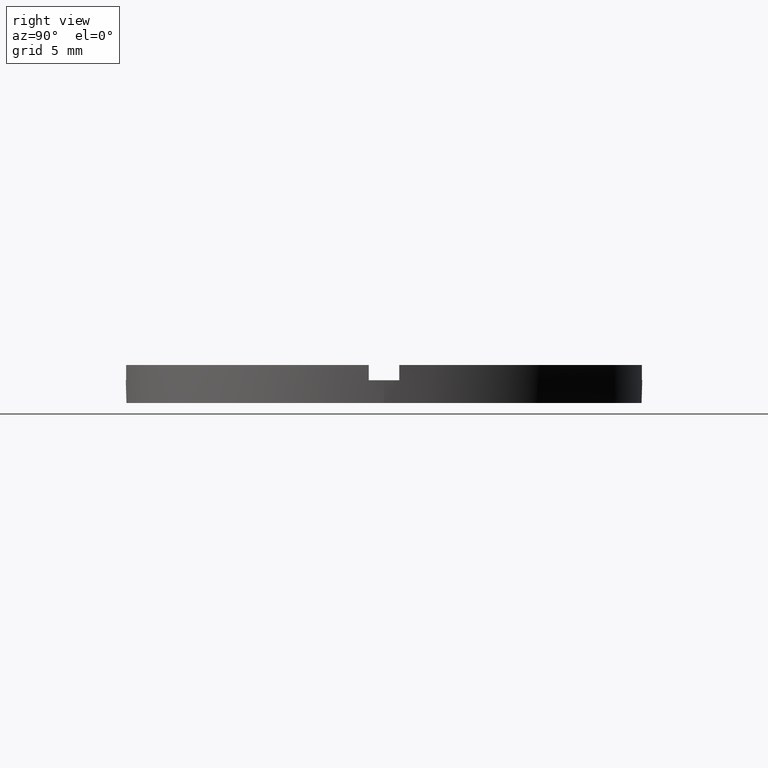
[diagram: clean part render]
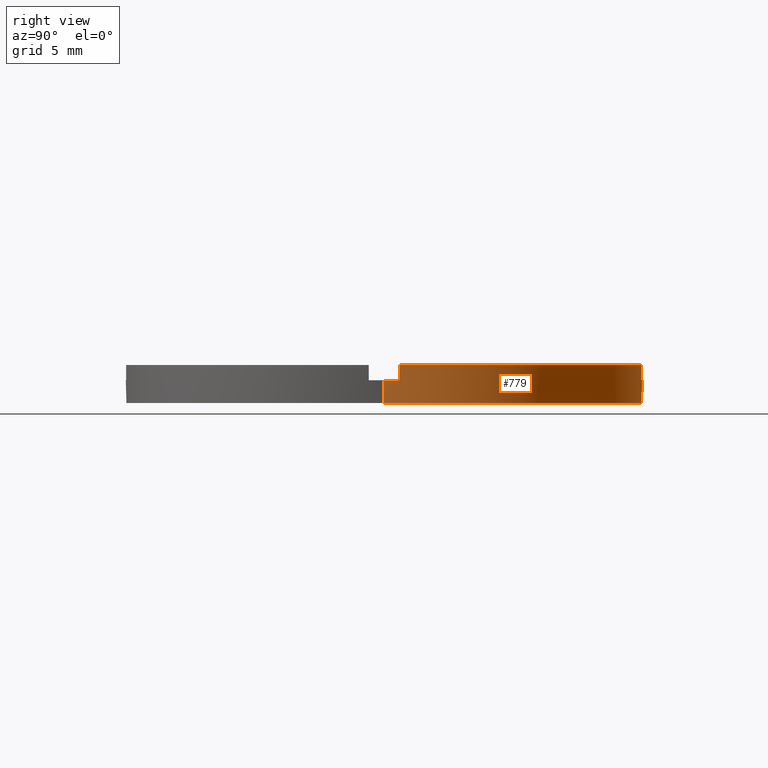
[diagram: same view with one face highlighted and labeled with its STEP entity id]
A machine part, right view. The second image highlights one B-rep face of the part: STEP entity #779.
In plain terms, the highlighted cylindrical surface (partial cylindrical patch) has radius 17 mm, axis along (-0, -0, -1).
Its self-contained STEP definition (entity closure, byte-faithful):
#8 = DIRECTION ( 'NONE',  ( 0.000000000000000000, 0.000000000000000000, 1.000000000000000000 ) ) ;
#14 = DIRECTION ( 'NONE',  ( 0.000000000000000000, 0.000000000000000000, 1.000000000000000000 ) ) ;
#22 = CARTESIAN_POINT ( 'NONE',  ( -16.97056274847714263, 0.9999999999999763522, 2.500000000000000000 ) ) ;
#25 = DIRECTION ( 'NONE',  ( 0.000000000000000000, 0.000000000000000000, 1.000000000000000000 ) ) ;
#29 = CARTESIAN_POINT ( 'NONE',  ( -1.000000000000025091, 16.97056274847713908, 2.500000000000000000 ) ) ;
#38 = CIRCLE ( 'NONE', #264, 17.00000000000000000 ) ;
#39 = LINE ( 'NONE', #708, #556 ) ;
#51 = CIRCLE ( 'NONE', #279, 17.00000000000000000 ) ;
#54 = DIRECTION ( 'NONE',  ( 0.000000000000000000, -0.000000000000000000, 1.000000000000000000 ) ) ;
#56 = ORIENTED_EDGE ( 'NONE', *, *, #326, .T. ) ;
#69 = DIRECTION ( 'NONE',  ( 0.000000000000000000, 0.000000000000000000, 1.000000000000000000 ) ) ;
#71 = CARTESIAN_POINT ( 'NONE',  ( -1.000000000000025091, 16.97056274847713908, 2.500000000000000000 ) ) ;
#74 = DIRECTION ( 'NONE',  ( -0.000000000000000000, -0.000000000000000000, -1.000000000000000000 ) ) ;
#77 = DIRECTION ( 'NONE',  ( 1.000000000000000000, 0.000000000000000000, 0.000000000000000000 ) ) ;
#81 = EDGE_CURVE ( 'NONE', #450, #469, #269, .T. ) ;
#85 = CARTESIAN_POINT ( 'NONE',  ( 17.00000000000000000, 2.081899558550500280E-15, 1.500000000000000000 ) ) ;
#101 = ORIENTED_EDGE ( 'NONE', *, *, #683, .T. ) ;
#103 = ORIENTED_EDGE ( 'NONE', *, *, #427, .F. ) ;
#104 = EDGE_CURVE ( 'NONE', #706, #215, #290, .T. ) ;
#109 = EDGE_CURVE ( 'NONE', #450, #365, #38, .T. ) ;
#116 = VERTEX_POINT ( 'NONE', #755 ) ;
#122 = ORIENTED_EDGE ( 'NONE', *, *, #104, .T. ) ;
#123 = VERTEX_POINT ( 'NONE', #310 ) ;
#127 = ORIENTED_EDGE ( 'NONE', *, *, #721, .F. ) ;
#136 = CARTESIAN_POINT ( 'NONE',  ( 0.000000000000000000, 0.000000000000000000, 2.500000000000000000 ) ) ;
#139 = VECTOR ( 'NONE', #581, 1000.000000000000000 ) ;
#149 = VECTOR ( 'NONE', #595, 1000.000000000000000 ) ;
#157 = VERTEX_POINT ( 'NONE', #29 ) ;
#163 = LINE ( 'NONE', #735, #655 ) ;
#186 = CARTESIAN_POINT ( 'NONE',  ( -17.00000000000000000, 0.000000000000000000, 1.500000000000000000 ) ) ;
#202 = VERTEX_POINT ( 'NONE', #332 ) ;
#203 = DIRECTION ( 'NONE',  ( 1.000000000000000000, 0.000000000000000000, 0.000000000000000000 ) ) ;
#215 = VERTEX_POINT ( 'NONE', #718 ) ;
#252 = DIRECTION ( 'NONE',  ( -0.000000000000000000, -0.000000000000000000, -1.000000000000000000 ) ) ;
#257 = CARTESIAN_POINT ( 'NONE',  ( 16.97056274847714974, 0.9999999999998411271, 1.500000000000000000 ) ) ;
#264 = AXIS2_PLACEMENT_3D ( 'NONE', #318, #69, #430 ) ;
#265 = DIRECTION ( 'NONE',  ( 1.000000000000000000, 0.000000000000000000, 0.000000000000000000 ) ) ;
#269 = LINE ( 'NONE', #22, #536 ) ;
#279 = AXIS2_PLACEMENT_3D ( 'NONE', #618, #14, #203 ) ;
#282 = VECTOR ( 'NONE', #8, 1000.000000000000000 ) ;
#290 = LINE ( 'NONE', #516, #282 ) ;
#297 = CIRCLE ( 'NONE', #700, 17.00000000000000000 ) ;
#310 = CARTESIAN_POINT ( 'NONE',  ( 16.97056274847714974, 0.9999999999998411271, 2.500000000000000000 ) ) ;
#311 = CARTESIAN_POINT ( 'NONE',  ( 0.9999999999999749090, 16.97056274847714263, 1.500000000000000000 ) ) ;
#318 = CARTESIAN_POINT ( 'NONE',  ( 0.000000000000000000, 0.000000000000000000, 1.500000000000000000 ) ) ;
#320 = EDGE_CURVE ( 'NONE', #706, #202, #297, .T. ) ;
#326 = EDGE_CURVE ( 'NONE', #123, #447, #39, .T. ) ;
#332 = CARTESIAN_POINT ( 'NONE',  ( -1.000000000000025091, 16.97056274847713908, 1.500000000000000000 ) ) ;
#339 = VERTEX_POINT ( 'NONE', #85 ) ;
#341 = ORIENTED_EDGE ( 'NONE', *, *, #81, .T. ) ;
#354 = VERTEX_POINT ( 'NONE', #408 ) ;
#357 = ORIENTED_EDGE ( 'NONE', *, *, #600, .T. ) ;
#363 = CARTESIAN_POINT ( 'NONE',  ( -16.97056274847714263, 0.9999999999999763522, 1.500000000000000000 ) ) ;
#365 = VERTEX_POINT ( 'NONE', #186 ) ;
#380 = ORIENTED_EDGE ( 'NONE', *, *, #109, .F. ) ;
#381 = CARTESIAN_POINT ( 'NONE',  ( -16.97056274847714263, 0.9999999999999763522, 2.500000000000000000 ) ) ;
#389 = CIRCLE ( 'NONE', #465, 17.00000000000000000 ) ;
#393 = EDGE_CURVE ( 'NONE', #123, #215, #541, .T. ) ;
#394 = CIRCLE ( 'NONE', #400, 17.00000000000000000 ) ;
#400 = AXIS2_PLACEMENT_3D ( 'NONE', #539, #405, #674 ) ;
#403 = LINE ( 'NONE', #71, #149 ) ;
#405 = DIRECTION ( 'NONE',  ( 0.000000000000000000, 0.000000000000000000, 1.000000000000000000 ) ) ;
#407 = CYLINDRICAL_SURFACE ( 'NONE', #567, 17.00000000000000000 ) ;
#408 = CARTESIAN_POINT ( 'NONE',  ( -17.00000000000000000, 0.000000000000000000, 0.000000000000000000 ) ) ;
#415 = EDGE_LOOP ( 'NONE', ( #127, #640, #101, #471, #380, #341, #103, #357, #638, #122, #573, #56 ) ) ;
#427 = EDGE_CURVE ( 'NONE', #157, #469, #51, .T. ) ;
#430 = DIRECTION ( 'NONE',  ( 1.000000000000000000, 0.000000000000000000, 0.000000000000000000 ) ) ;
#447 = VERTEX_POINT ( 'NONE', #257 ) ;
#450 = VERTEX_POINT ( 'NONE', #363 ) ;
#465 = AXIS2_PLACEMENT_3D ( 'NONE', #509, #25, #77 ) ;
#469 = VERTEX_POINT ( 'NONE', #381 ) ;
#471 = ORIENTED_EDGE ( 'NONE', *, *, #774, .F. ) ;
#502 = AXIS2_PLACEMENT_3D ( 'NONE', #136, #551, #265 ) ;
#509 = CARTESIAN_POINT ( 'NONE',  ( 0.000000000000000000, 0.000000000000000000, 1.500000000000000000 ) ) ;
#516 = CARTESIAN_POINT ( 'NONE',  ( 0.9999999999999749090, 16.97056274847714263, 2.500000000000000000 ) ) ;
#517 = DIRECTION ( 'NONE',  ( -0.000000000000000000, -0.000000000000000000, -1.000000000000000000 ) ) ;
#521 = CARTESIAN_POINT ( 'NONE',  ( -17.00000000000000000, 0.000000000000000000, 2.500000000000000000 ) ) ;
#525 = DIRECTION ( 'NONE',  ( -1.000000000000000000, 0.000000000000000000, 0.000000000000000000 ) ) ;
#536 = VECTOR ( 'NONE', #612, 1000.000000000000000 ) ;
#539 = CARTESIAN_POINT ( 'NONE',  ( 0.000000000000000000, 0.000000000000000000, 0.000000000000000000 ) ) ;
#541 = CIRCLE ( 'NONE', #502, 17.00000000000000000 ) ;
#551 = DIRECTION ( 'NONE',  ( 0.000000000000000000, 0.000000000000000000, 1.000000000000000000 ) ) ;
#556 = VECTOR ( 'NONE', #517, 1000.000000000000000 ) ;
#567 = AXIS2_PLACEMENT_3D ( 'NONE', #724, #252, #525 ) ;
#573 = ORIENTED_EDGE ( 'NONE', *, *, #393, .F. ) ;
#577 = EDGE_CURVE ( 'NONE', #339, #116, #163, .T. ) ;
#581 = DIRECTION ( 'NONE',  ( -0.000000000000000000, -0.000000000000000000, -1.000000000000000000 ) ) ;
#595 = DIRECTION ( 'NONE',  ( -0.000000000000000000, -0.000000000000000000, -1.000000000000000000 ) ) ;
#600 = EDGE_CURVE ( 'NONE', #157, #202, #403, .T. ) ;
#612 = DIRECTION ( 'NONE',  ( 0.000000000000000000, 0.000000000000000000, 1.000000000000000000 ) ) ;
#618 = CARTESIAN_POINT ( 'NONE',  ( 0.000000000000000000, 0.000000000000000000, 2.500000000000000000 ) ) ;
#638 = ORIENTED_EDGE ( 'NONE', *, *, #320, .F. ) ;
#640 = ORIENTED_EDGE ( 'NONE', *, *, #577, .T. ) ;
#655 = VECTOR ( 'NONE', #74, 1000.000000000000000 ) ;
#658 = FACE_OUTER_BOUND ( 'NONE', #415, .T. ) ;
#664 = LINE ( 'NONE', #521, #139 ) ;
#674 = DIRECTION ( 'NONE',  ( 1.000000000000000000, 0.000000000000000000, 0.000000000000000000 ) ) ;
#683 = EDGE_CURVE ( 'NONE', #116, #354, #394, .T. ) ;
#700 = AXIS2_PLACEMENT_3D ( 'NONE', #780, #54, #772 ) ;
#706 = VERTEX_POINT ( 'NONE', #311 ) ;
#708 = CARTESIAN_POINT ( 'NONE',  ( 16.97056274847714974, 0.9999999999998411271, 2.500000000000000000 ) ) ;
#718 = CARTESIAN_POINT ( 'NONE',  ( 0.9999999999999749090, 16.97056274847714263, 2.500000000000000000 ) ) ;
#721 = EDGE_CURVE ( 'NONE', #339, #447, #389, .T. ) ;
#724 = CARTESIAN_POINT ( 'NONE',  ( 0.000000000000000000, 0.000000000000000000, 2.500000000000000000 ) ) ;
#735 = CARTESIAN_POINT ( 'NONE',  ( 17.00000000000000000, 2.081899558550500280E-15, 2.500000000000000000 ) ) ;
#755 = CARTESIAN_POINT ( 'NONE',  ( 17.00000000000000000, 2.081899558550500280E-15, 0.000000000000000000 ) ) ;
#772 = DIRECTION ( 'NONE',  ( 1.000000000000000000, 0.000000000000000000, 0.000000000000000000 ) ) ;
#774 = EDGE_CURVE ( 'NONE', #365, #354, #664, .T. ) ;
#779 = ADVANCED_FACE ( 'NONE', ( #658 ), #407, .T. ) ;
#780 = CARTESIAN_POINT ( 'NONE',  ( 0.000000000000000000, 0.000000000000000000, 1.500000000000000000 ) ) ;